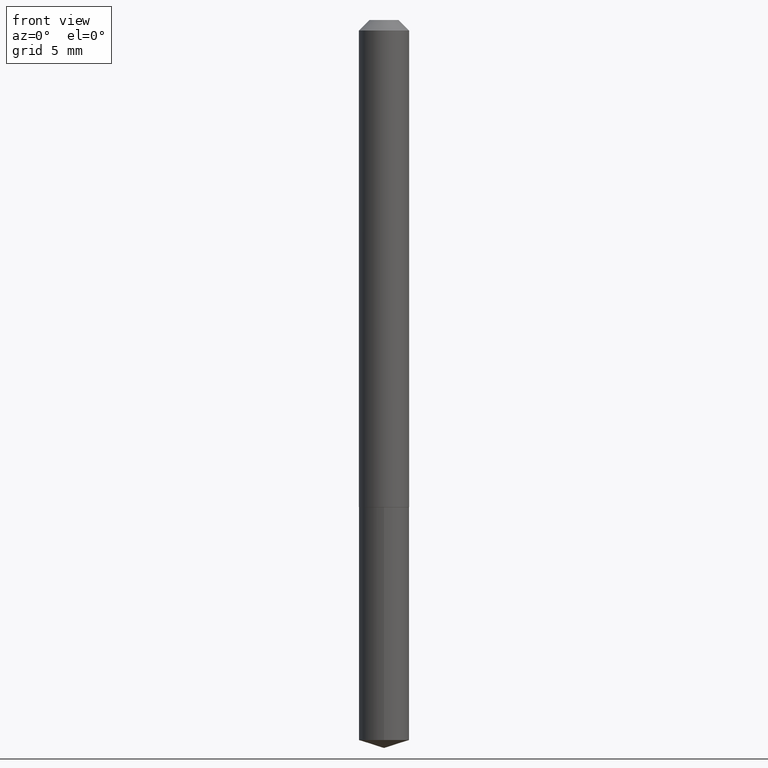
[diagram: clean part render]
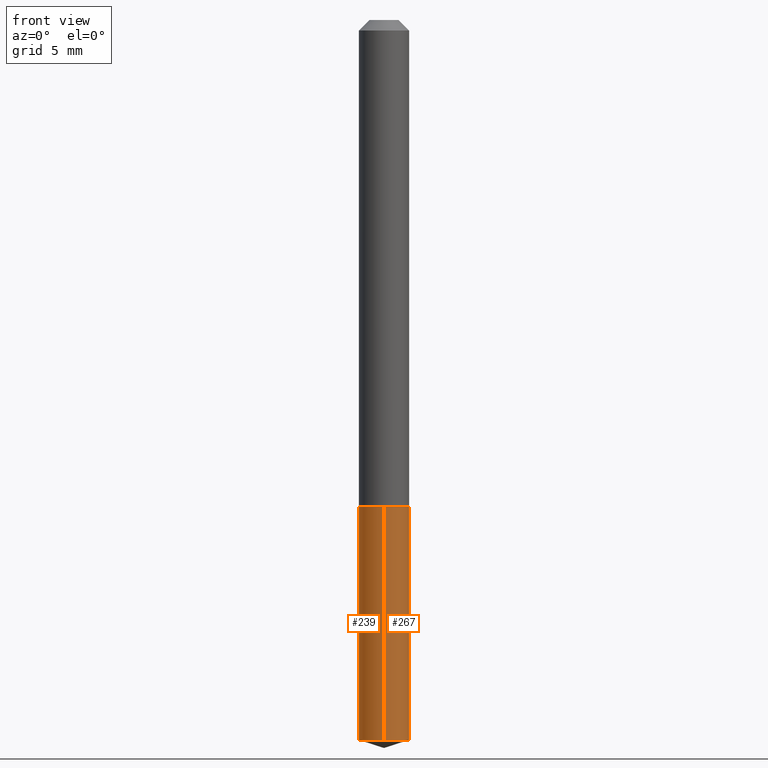
[diagram: same view with one multi-face feature highlighted, each face labeled with its STEP entity id]
A machine part, front view. The highlighted faces form ONE feature: a constant-radius fillet chain: 2 tangent blend faces with common blend radius 1.8999 mm. The faces share edges in the B-rep.
Their STEP definitions:
[1] entity #267 (Cylinder):
#14 = DIRECTION ( 'NONE',  ( -2.445509094605350036E-29, 3.491423643532325446E-15, 1.000000000000000000 ) ) ;
#26 = DIRECTION ( 'NONE',  ( -2.445509094605349756E-29, 3.491423643532325446E-15, 1.000000000000000000 ) ) ;
#27 = VERTEX_POINT ( 'NONE', #338 ) ;
#36 = EDGE_CURVE ( 'NONE', #174, #208, #230, .T. ) ;
#37 = AXIS2_PLACEMENT_3D ( 'NONE', #247, #14, #72 ) ;
#48 = CARTESIAN_POINT ( 'NONE',  ( -5.223256082908973017E-16, -0.07480000000000507077, -1.448899999999999855 ) ) ;
#50 = CARTESIAN_POINT ( 'NONE',  ( 5.314859663486073379E-16, 0.07479999999999492610, -1.448900000000000521 ) ) ;
#58 = VECTOR ( 'NONE', #261, 39.37007874015748143 ) ;
#72 = DIRECTION ( 'NONE',  ( -6.982962677686266711E-15, -1.000000000000000000, 3.652203200085913145E-15 ) ) ;
#77 = DIRECTION ( 'NONE',  ( -2.445509094605350036E-29, 3.491423643532325446E-15, 1.000000000000000000 ) ) ;
#78 = AXIS2_PLACEMENT_3D ( 'NONE', #139, #77, #142 ) ;
#83 = AXIS2_PLACEMENT_3D ( 'NONE', #271, #210, #323 ) ;
#92 = CARTESIAN_POINT ( 'NONE',  ( 5.314859663485903773E-16, 0.07479999999999495386, -1.448900000000000521 ) ) ;
#94 = EDGE_CURVE ( 'NONE', #174, #27, #111, .T. ) ;
#107 = EDGE_CURVE ( 'NONE', #27, #122, #190, .T. ) ;
#111 = LINE ( 'NONE', #48, #58 ) ;
#112 = LINE ( 'NONE', #92, #346 ) ;
#122 = VERTEX_POINT ( 'NONE', #50 ) ;
#139 = CARTESIAN_POINT ( 'NONE',  ( 3.543239753281644463E-29, -5.058807311849834990E-15, -1.448900000000000299 ) ) ;
#142 = DIRECTION ( 'NONE',  ( -6.982962677686265922E-15, -1.000000000000000000, 3.652203200085913145E-15 ) ) ;
#153 = ORIENTED_EDGE ( 'NONE', *, *, #107, .F. ) ;
#174 = VERTEX_POINT ( 'NONE', #343 ) ;
#184 = EDGE_LOOP ( 'NONE', ( #249, #225, #153, #307 ) ) ;
#190 = CIRCLE ( 'NONE', #78, 0.07480000000000000537 ) ;
#203 = CYLINDRICAL_SURFACE ( 'NONE', #83, 0.07480000000000000537 ) ;
#208 = VERTEX_POINT ( 'NONE', #318 ) ;
#210 = DIRECTION ( 'NONE',  ( -2.445509094605350036E-29, 3.491423643532325446E-15, 1.000000000000000000 ) ) ;
#225 = ORIENTED_EDGE ( 'NONE', *, *, #263, .T. ) ;
#230 = CIRCLE ( 'NONE', #37, 0.07480000000000000537 ) ;
#247 = CARTESIAN_POINT ( 'NONE',  ( 5.237771278598401273E-29, -7.478069397299810135E-15, -2.141815650591852194 ) ) ;
#249 = ORIENTED_EDGE ( 'NONE', *, *, #36, .T. ) ;
#261 = DIRECTION ( 'NONE',  ( -2.445509094605349756E-29, 3.491423643532325446E-15, 1.000000000000000000 ) ) ;
#263 = EDGE_CURVE ( 'NONE', #208, #122, #112, .T. ) ;
#267 = ADVANCED_FACE ( 'NONE', ( #273 ), #203, .T. ) ;
#271 = CARTESIAN_POINT ( 'NONE',  ( 3.543239753281644463E-29, -5.058807311849834990E-15, -1.448900000000000299 ) ) ;
#273 = FACE_OUTER_BOUND ( 'NONE', #184, .T. ) ;
#307 = ORIENTED_EDGE ( 'NONE', *, *, #94, .F. ) ;
#318 = CARTESIAN_POINT ( 'NONE',  ( 5.314859663486075351E-16, 0.07479999999999253912, -2.141815650591852638 ) ) ;
#323 = DIRECTION ( 'NONE',  ( -6.982962677686266711E-15, -1.000000000000000000, 3.652203200085913145E-15 ) ) ;
#338 = CARTESIAN_POINT ( 'NONE',  ( -5.223256082908973017E-16, -0.07480000000000507077, -1.448899999999999855 ) ) ;
#343 = CARTESIAN_POINT ( 'NONE',  ( -5.223256082908805384E-16, -0.07480000000000751326, -2.141815650591851750 ) ) ;
#346 = VECTOR ( 'NONE', #26, 39.37007874015748143 ) ;
[2] entity #239 (Cylinder):
#26 = DIRECTION ( 'NONE',  ( -2.445509094605349756E-29, 3.491423643532325446E-15, 1.000000000000000000 ) ) ;
#27 = VERTEX_POINT ( 'NONE', #338 ) ;
#48 = CARTESIAN_POINT ( 'NONE',  ( -5.223256082908973017E-16, -0.07480000000000507077, -1.448899999999999855 ) ) ;
#50 = CARTESIAN_POINT ( 'NONE',  ( 5.314859663486073379E-16, 0.07479999999999492610, -1.448900000000000521 ) ) ;
#54 = FACE_OUTER_BOUND ( 'NONE', #74, .T. ) ;
#58 = VECTOR ( 'NONE', #261, 39.37007874015748143 ) ;
#71 = EDGE_CURVE ( 'NONE', #208, #174, #135, .T. ) ;
#74 = EDGE_LOOP ( 'NONE', ( #304, #220, #211, #179 ) ) ;
#90 = CYLINDRICAL_SURFACE ( 'NONE', #257, 0.07480000000000000537 ) ;
#92 = CARTESIAN_POINT ( 'NONE',  ( 5.314859663485903773E-16, 0.07479999999999495386, -1.448900000000000521 ) ) ;
#94 = EDGE_CURVE ( 'NONE', #174, #27, #111, .T. ) ;
#108 = DIRECTION ( 'NONE',  ( -6.982962677686266711E-15, -1.000000000000000000, 3.652203200085913145E-15 ) ) ;
#111 = LINE ( 'NONE', #48, #58 ) ;
#112 = LINE ( 'NONE', #92, #346 ) ;
#122 = VERTEX_POINT ( 'NONE', #50 ) ;
#134 = CARTESIAN_POINT ( 'NONE',  ( 3.543239753281644463E-29, -5.058807311849834990E-15, -1.448900000000000299 ) ) ;
#135 = CIRCLE ( 'NONE', #333, 0.07480000000000000537 ) ;
#167 = DIRECTION ( 'NONE',  ( -2.445509094605350036E-29, 3.491423643532325446E-15, 1.000000000000000000 ) ) ;
#174 = VERTEX_POINT ( 'NONE', #343 ) ;
#177 = CARTESIAN_POINT ( 'NONE',  ( 3.543239753281644463E-29, -5.058807311849834990E-15, -1.448900000000000299 ) ) ;
#179 = ORIENTED_EDGE ( 'NONE', *, *, #206, .F. ) ;
#205 = DIRECTION ( 'NONE',  ( -2.445509094605350036E-29, 3.491423643532325446E-15, 1.000000000000000000 ) ) ;
#206 = EDGE_CURVE ( 'NONE', #122, #27, #216, .T. ) ;
#208 = VERTEX_POINT ( 'NONE', #318 ) ;
#209 = AXIS2_PLACEMENT_3D ( 'NONE', #134, #236, #350 ) ;
#211 = ORIENTED_EDGE ( 'NONE', *, *, #94, .T. ) ;
#216 = CIRCLE ( 'NONE', #209, 0.07480000000000000537 ) ;
#220 = ORIENTED_EDGE ( 'NONE', *, *, #71, .T. ) ;
#236 = DIRECTION ( 'NONE',  ( -2.445509094605350036E-29, 3.491423643532325446E-15, 1.000000000000000000 ) ) ;
#239 = ADVANCED_FACE ( 'NONE', ( #54 ), #90, .T. ) ;
#257 = AXIS2_PLACEMENT_3D ( 'NONE', #177, #205, #383 ) ;
#261 = DIRECTION ( 'NONE',  ( -2.445509094605349756E-29, 3.491423643532325446E-15, 1.000000000000000000 ) ) ;
#263 = EDGE_CURVE ( 'NONE', #208, #122, #112, .T. ) ;
#266 = CARTESIAN_POINT ( 'NONE',  ( 5.237771278598401273E-29, -7.478069397299810135E-15, -2.141815650591852194 ) ) ;
#304 = ORIENTED_EDGE ( 'NONE', *, *, #263, .F. ) ;
#318 = CARTESIAN_POINT ( 'NONE',  ( 5.314859663486075351E-16, 0.07479999999999253912, -2.141815650591852638 ) ) ;
#333 = AXIS2_PLACEMENT_3D ( 'NONE', #266, #167, #108 ) ;
#338 = CARTESIAN_POINT ( 'NONE',  ( -5.223256082908973017E-16, -0.07480000000000507077, -1.448899999999999855 ) ) ;
#343 = CARTESIAN_POINT ( 'NONE',  ( -5.223256082908805384E-16, -0.07480000000000751326, -2.141815650591851750 ) ) ;
#346 = VECTOR ( 'NONE', #26, 39.37007874015748143 ) ;
#350 = DIRECTION ( 'NONE',  ( -6.982962677686265922E-15, -1.000000000000000000, 3.652203200085913145E-15 ) ) ;
#383 = DIRECTION ( 'NONE',  ( -6.982962677686266711E-15, -1.000000000000000000, 3.652203200085913145E-15 ) ) ;